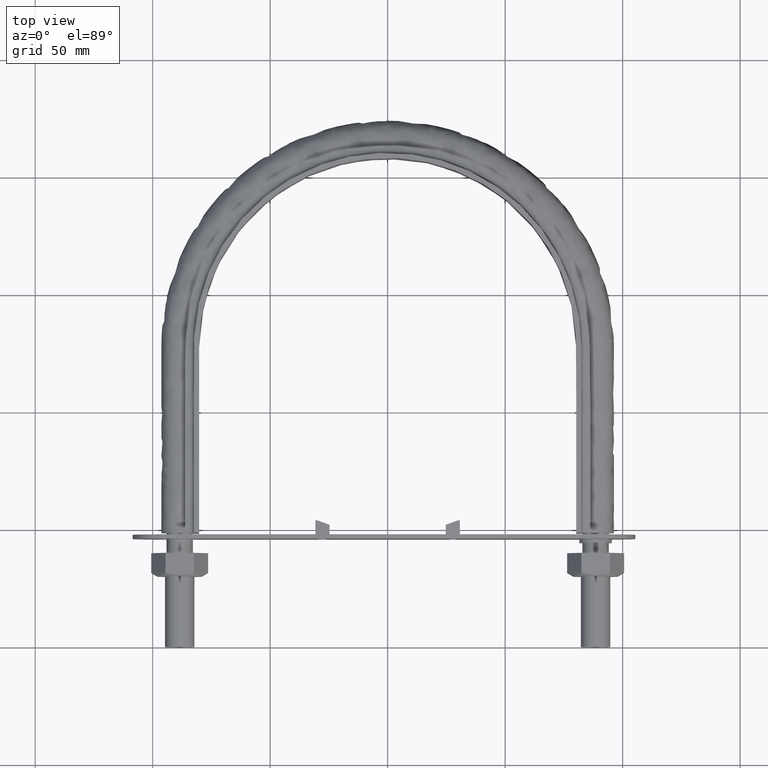
[diagram: clean part render]
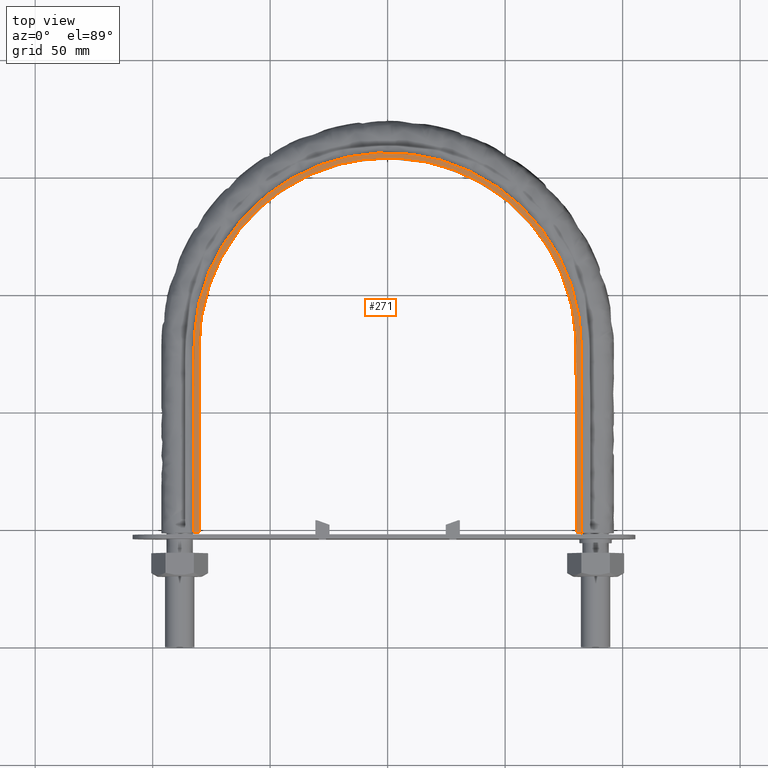
[diagram: same view with one face highlighted and labeled with its STEP entity id]
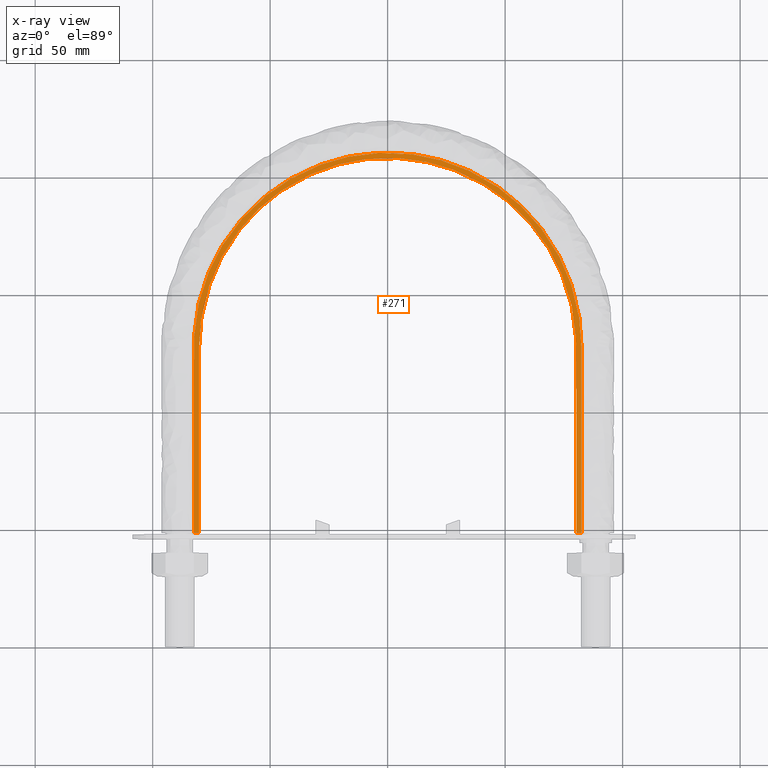
[diagram: x-ray of the same camera — body ghosted, the highlighted face saturated]
A machine part, top view. The second image highlights one B-rep face of the part: STEP entity #271.
The next image is the same camera in x-ray: the body ghosted, the highlighted face saturated — about 0% of this face is hidden behind the body in this view.
In plain terms, the highlighted planar face has unit normal (0, 0, 1).
Its self-contained STEP definition (entity closure, byte-faithful):
#271 = ADVANCED_FACE( '', ( #355 ), #356, .T. );
#355 = FACE_OUTER_BOUND( '', #543, .T. );
#356 = PLANE( '', #544 );
#543 = EDGE_LOOP( '', ( #1675, #1676, #1677, #1678 ) );
#544 = AXIS2_PLACEMENT_3D( '', #1679, #1680, #1681 );
#1675 = ORIENTED_EDGE( '', *, *, #2199, .T. );
#1676 = ORIENTED_EDGE( '', *, *, #2209, .T. );
#1677 = ORIENTED_EDGE( '', *, *, #2208, .T. );
#1678 = ORIENTED_EDGE( '', *, *, #2210, .F. );
#1679 = CARTESIAN_POINT( '', ( 150.000000000000, 348.500000000000, 15.0000000000000 ) );
#1680 = DIRECTION( '', ( 0.000000000000000, 0.000000000000000, 1.00000000000000 ) );
#1681 = DIRECTION( '', ( 1.22460635382238E-016, 1.00000000000000, 0.000000000000000 ) );
#2199 = EDGE_CURVE( '', #2358, #2356, #2359, .T. );
#2208 = EDGE_CURVE( '', #2370, #2372, #2374, .T. );
#2209 = EDGE_CURVE( '', #2356, #2370, #2375, .T. );
#2210 = EDGE_CURVE( '', #2358, #2372, #2376, .F. );
#2356 = VERTEX_POINT( '', #2634 );
#2358 = VERTEX_POINT( '', #2637 );
#2359 = LINE( '', #2638, #2639 );
#2370 = VERTEX_POINT( '', #2726 );
#2372 = VERTEX_POINT( '', #2729 );
#2374 = LINE( '', #2761, #2762 );
#2375 = B_SPLINE_CURVE_WITH_KNOTS( '', 3, ( #2763, #2764, #2765, #2766, #2767, #2768, #2769, #2770, #2771, #2772, #2773, #2774, #2775, #2776, #2777, #2778, #2779, #2780 ), .UNSPECIFIED., .F., .F., ( 4, 3, 1, 1, 1, 1, 1, 1, 1, 1, 3, 4 ), ( -9.00000000000000, -8.00000000000000, -7.50000000000000, -7.00000000000000, -6.00000000000000, -5.00000000000000, -4.00000000000000, -3.00000000000000, -2.00000000000000, -1.50000000000000, -1.00000000000000, 0.000000000000000 ), .UNSPECIFIED. );
#2376 = B_SPLINE_CURVE_WITH_KNOTS( '', 3, ( #2781, #2782, #2783, #2784, #2785, #2786, #2787, #2788, #2789, #2790, #2791, #2792, #2793, #2794, #2795, #2796, #2797, #2798 ), .UNSPECIFIED., .F., .F., ( 4, 3, 1, 1, 1, 1, 1, 1, 1, 1, 3, 4 ), ( 0.000000000000000, 1.00000000000000, 1.50000000000000, 2.00000000000000, 3.00000000000000, 4.00000000000000, 5.00000000000000, 6.00000000000000, 7.00000000000000, 7.50000000000000, 8.00000000000000, 9.00000000000000 ), .UNSPECIFIED. );
#2634 = CARTESIAN_POINT( '', ( -80.2499999999999, 48.5000000000003, 15.0000000000000 ) );
#2637 = CARTESIAN_POINT( '', ( -82.4499999999999, 48.5000000000003, 15.0000000000000 ) );
#2638 = CARTESIAN_POINT( '', ( -150.000000000000, 48.5000000000003, 15.0000000000000 ) );
#2639 = VECTOR( '', #3312, 1000.00000000000 );
#2726 = CARTESIAN_POINT( '', ( 80.2500000000001, 48.5000000000003, 15.0000000000000 ) );
#2729 = CARTESIAN_POINT( '', ( 82.4500000000002, 48.5000000000003, 15.0000000000000 ) );
#2761 = CARTESIAN_POINT( '', ( -150.000000000000, 48.5000000000003, 15.0000000000000 ) );
#2762 = VECTOR( '', #3316, 1000.00000000000 );
#2763 = CARTESIAN_POINT( '', ( -80.2500000000000, 48.5000000000001, 14.9999999999999 ) );
#2764 = CARTESIAN_POINT( '', ( -80.2500000000000, 74.9200000000001, 14.9999999999999 ) );
#2765 = CARTESIAN_POINT( '', ( -80.2500000000000, 101.340000000000, 14.9999999999999 ) );
#2766 = CARTESIAN_POINT( '', ( -80.2500000000000, 127.760000000000, 14.9999999999999 ) );
#2767 = CARTESIAN_POINT( '', ( -80.2500000000000, 133.750586735035, 14.9999999999999 ) );
#2768 = CARTESIAN_POINT( '', ( -78.8786264043398, 145.768376163953, 14.9999999999999 ) );
#2769 = CARTESIAN_POINT( '', ( -70.9339277239971, 168.577888193896, 14.9999999999999 ) );
#2770 = CARTESIAN_POINT( '', ( -51.7427931998640, 192.644676397937, 14.9999999999999 ) );
#2771 = CARTESIAN_POINT( '', ( -18.4670121667006, 208.668622663522, 14.9999999999999 ) );
#2772 = CARTESIAN_POINT( '', ( 18.4670121667005, 208.668622663522, 14.9999999999999 ) );
#2773 = CARTESIAN_POINT( '', ( 51.7427931998639, 192.644676397937, 14.9999999999999 ) );
#2774 = CARTESIAN_POINT( '', ( 70.9339277239970, 168.577888193896, 14.9999999999999 ) );
#2775 = CARTESIAN_POINT( '', ( 78.8786264043398, 145.768376163953, 14.9999999999999 ) );
#2776 = CARTESIAN_POINT( '', ( 80.2500000000000, 133.750586735035, 14.9999999999999 ) );
#2777 = CARTESIAN_POINT( '', ( 80.2499999999999, 127.760000000000, 14.9999999999999 ) );
#2778 = CARTESIAN_POINT( '', ( 80.2499999999999, 101.340000000000, 14.9999999999999 ) );
#2779 = CARTESIAN_POINT( '', ( 80.2499999999999, 74.9200000000000, 14.9999999999999 ) );
#2780 = CARTESIAN_POINT( '', ( 80.2499999999999, 48.5000000000000, 14.9999999999999 ) );
#2781 = CARTESIAN_POINT( '', ( 82.4500000000000, 48.5000000000000, 15.0000000000000 ) );
#2782 = CARTESIAN_POINT( '', ( 82.4500000000000, 74.9200000000000, 15.0000000000000 ) );
#2783 = CARTESIAN_POINT( '', ( 82.4500000000000, 101.340000000000, 15.0000000000000 ) );
#2784 = CARTESIAN_POINT( '', ( 82.4500000000000, 127.760000000000, 15.0000000000000 ) );
#2785 = CARTESIAN_POINT( '', ( 82.4500000000000, 133.917965282921, 15.0000000000000 ) );
#2786 = CARTESIAN_POINT( '', ( 81.0415063471974, 146.260747551918, 15.0000000000000 ) );
#2787 = CARTESIAN_POINT( '', ( 72.8782592641098, 169.697642595927, 15.0000000000000 ) );
#2788 = CARTESIAN_POINT( '', ( 53.1613822653425, 194.423193230709, 15.0000000000000 ) );
#2789 = CARTESIAN_POINT( '', ( 18.9732412542822, 210.886728985128, 15.0000000000000 ) );
#2790 = CARTESIAN_POINT( '', ( -18.9732412542821, 210.886728985128, 15.0000000000000 ) );
#2791 = CARTESIAN_POINT( '', ( -53.1613822653425, 194.423193230709, 15.0000000000000 ) );
#2792 = CARTESIAN_POINT( '', ( -72.8782592641097, 169.697642595926, 15.0000000000000 ) );
#2793 = CARTESIAN_POINT( '', ( -81.0415063471973, 146.260747551918, 15.0000000000000 ) );
#2794 = CARTESIAN_POINT( '', ( -82.4500000000000, 133.917965282921, 15.0000000000000 ) );
#2795 = CARTESIAN_POINT( '', ( -82.4500000000000, 127.760000000000, 15.0000000000000 ) );
#2796 = CARTESIAN_POINT( '', ( -82.4500000000000, 101.340000000000, 15.0000000000000 ) );
#2797 = CARTESIAN_POINT( '', ( -82.4500000000000, 74.9200000000000, 15.0000000000000 ) );
#2798 = CARTESIAN_POINT( '', ( -82.4500000000000, 48.5000000000001, 15.0000000000000 ) );
#3312 = DIRECTION( '', ( 1.00000000000000, -1.22460635382238E-016, 0.000000000000000 ) );
#3316 = DIRECTION( '', ( 1.00000000000000, -1.22460635382238E-016, 0.000000000000000 ) );